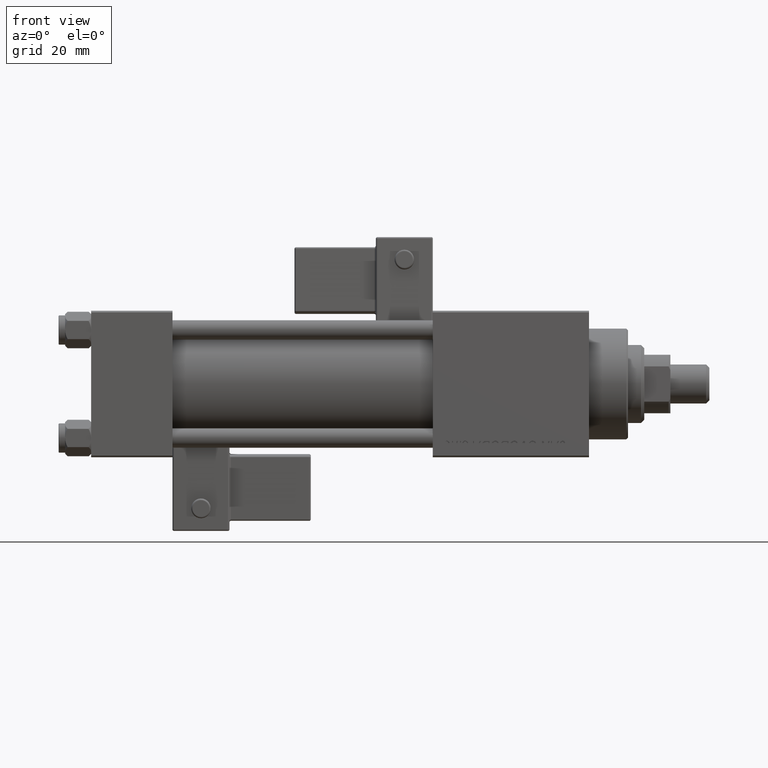
[diagram: clean part render]
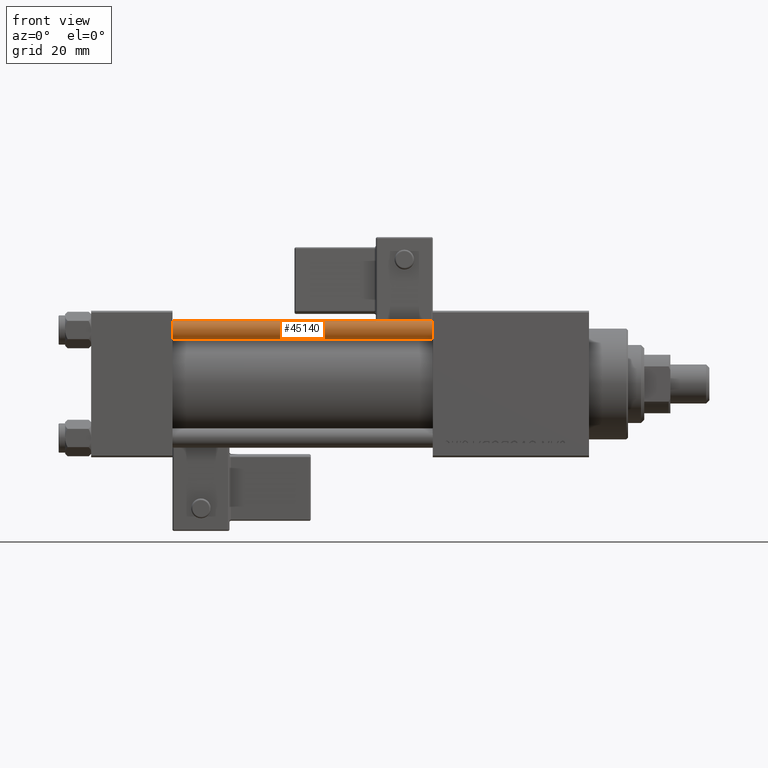
[diagram: same view with one face highlighted and labeled with its STEP entity id]
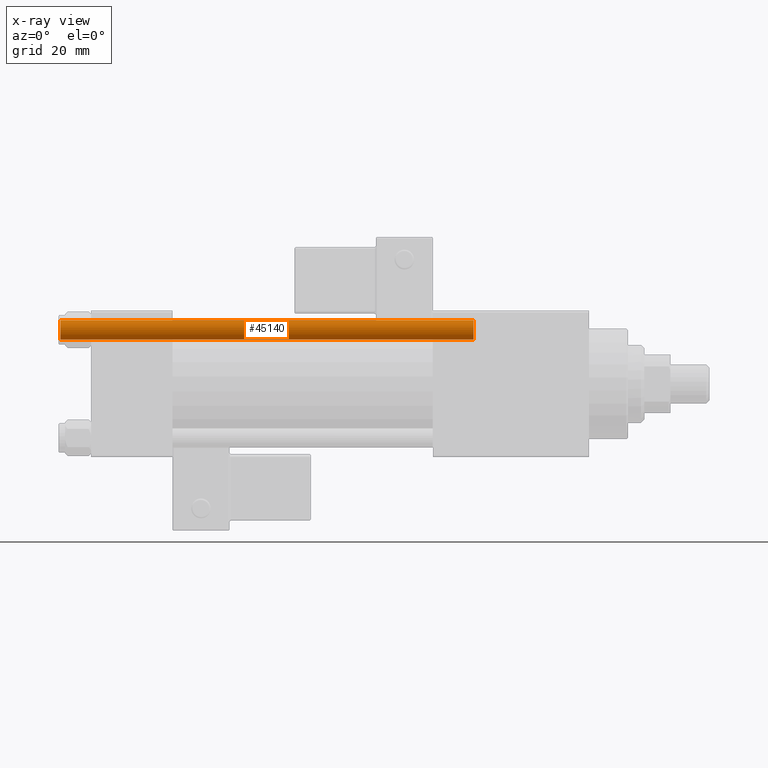
[diagram: x-ray of the same camera — body ghosted, the highlighted face saturated]
A machine part, front view. The second image highlights one B-rep face of the part: STEP entity #45140.
The next image is the same camera in x-ray: the body ghosted, the highlighted face saturated — about 0% of this face is hidden behind the body in this view.
In plain terms, the highlighted cylindrical surface (edge-blend (fillet) strip) has radius 3 mm, axis along (1, 0, -0).
Its self-contained STEP definition (entity closure, byte-faithful):
#814 = VERTEX_POINT ( 'NONE', #29619 ) ;
#1352 = FACE_OUTER_BOUND ( 'NONE', #46049, .T. ) ;
#1682 = CARTESIAN_POINT ( 'NONE',  ( 0.000000000000000000, 0.000000000000000000, 0.5000000000000281997 ) ) ;
#2038 = CARTESIAN_POINT ( 'NONE',  ( -3.000000000000000444, 0.000000000000000000, 0.5000000000000281997 ) ) ;
#2793 = AXIS2_PLACEMENT_3D ( 'NONE', #25212, #50468, #37715 ) ;
#3914 = CARTESIAN_POINT ( 'NONE',  ( 3.000000000000000444, 3.673940397442060361E-16, 0.5000000000000281997 ) ) ;
#5835 = VECTOR ( 'NONE', #39948, 1000.000000000000000 ) ;
#6450 = ORIENTED_EDGE ( 'NONE', *, *, #27736, .T. ) ;
#6751 = CARTESIAN_POINT ( 'NONE',  ( -3.000000000000000444, 0.000000000000000000, 128.0000000000000000 ) ) ;
#8662 = ORIENTED_EDGE ( 'NONE', *, *, #45560, .T. ) ;
#8699 = DIRECTION ( 'NONE',  ( -1.000000000000000000, 0.000000000000000000, 0.000000000000000000 ) ) ;
#10384 = DIRECTION ( 'NONE',  ( 1.000000000000000000, 0.000000000000000000, 0.000000000000000000 ) ) ;
#11284 = VECTOR ( 'NONE', #17094, 1000.000000000000000 ) ;
#13270 = LINE ( 'NONE', #29333, #11284 ) ;
#15749 = EDGE_CURVE ( 'NONE', #27407, #814, #24505, .T. ) ;
#17094 = DIRECTION ( 'NONE',  ( -0.000000000000000000, -0.000000000000000000, -1.000000000000000000 ) ) ;
#18361 = CARTESIAN_POINT ( 'NONE',  ( -3.000000000000000444, 0.000000000000000000, 127.4999999999999716 ) ) ;
#20967 = CARTESIAN_POINT ( 'NONE',  ( 0.000000000000000000, 0.000000000000000000, 128.0000000000000000 ) ) ;
#24505 = CIRCLE ( 'NONE', #2793, 3.000000000000000444 ) ;
#25212 = CARTESIAN_POINT ( 'NONE',  ( 0.000000000000000000, 0.000000000000000000, 127.4999999999999716 ) ) ;
#25522 = VERTEX_POINT ( 'NONE', #3914 ) ;
#27407 = VERTEX_POINT ( 'NONE', #18361 ) ;
#27736 = EDGE_CURVE ( 'NONE', #25522, #49334, #46480, .T. ) ;
#28641 = AXIS2_PLACEMENT_3D ( 'NONE', #20967, #51118, #8699 ) ;
#29333 = CARTESIAN_POINT ( 'NONE',  ( 3.000000000000000444, 3.673940397442060361E-16, 128.0000000000000000 ) ) ;
#29619 = CARTESIAN_POINT ( 'NONE',  ( 3.000000000000000444, 3.673940397442060361E-16, 127.4999999999999716 ) ) ;
#35292 = ORIENTED_EDGE ( 'NONE', *, *, #15749, .T. ) ;
#36134 = LINE ( 'NONE', #6751, #5835 ) ;
#37715 = DIRECTION ( 'NONE',  ( 1.000000000000000000, 0.000000000000000000, 0.000000000000000000 ) ) ;
#39948 = DIRECTION ( 'NONE',  ( -0.000000000000000000, -0.000000000000000000, -1.000000000000000000 ) ) ;
#40125 = EDGE_CURVE ( 'NONE', #27407, #49334, #36134, .T. ) ;
#45140 = ADVANCED_FACE ( 'NONE', ( #1352 ), #50299, .T. ) ;
#45560 = EDGE_CURVE ( 'NONE', #814, #25522, #13270, .T. ) ;
#46049 = EDGE_LOOP ( 'NONE', ( #35292, #8662, #6450, #49633 ) ) ;
#46480 = CIRCLE ( 'NONE', #50816, 3.000000000000000444 ) ;
#47649 = DIRECTION ( 'NONE',  ( -0.000000000000000000, -0.000000000000000000, 1.000000000000000000 ) ) ;
#49334 = VERTEX_POINT ( 'NONE', #2038 ) ;
#49633 = ORIENTED_EDGE ( 'NONE', *, *, #40125, .F. ) ;
#50299 = CYLINDRICAL_SURFACE ( 'NONE', #28641, 3.000000000000000444 ) ;
#50468 = DIRECTION ( 'NONE',  ( 0.000000000000000000, 0.000000000000000000, -1.000000000000000000 ) ) ;
#50816 = AXIS2_PLACEMENT_3D ( 'NONE', #1682, #47649, #10384 ) ;
#51118 = DIRECTION ( 'NONE',  ( -0.000000000000000000, -0.000000000000000000, -1.000000000000000000 ) ) ;